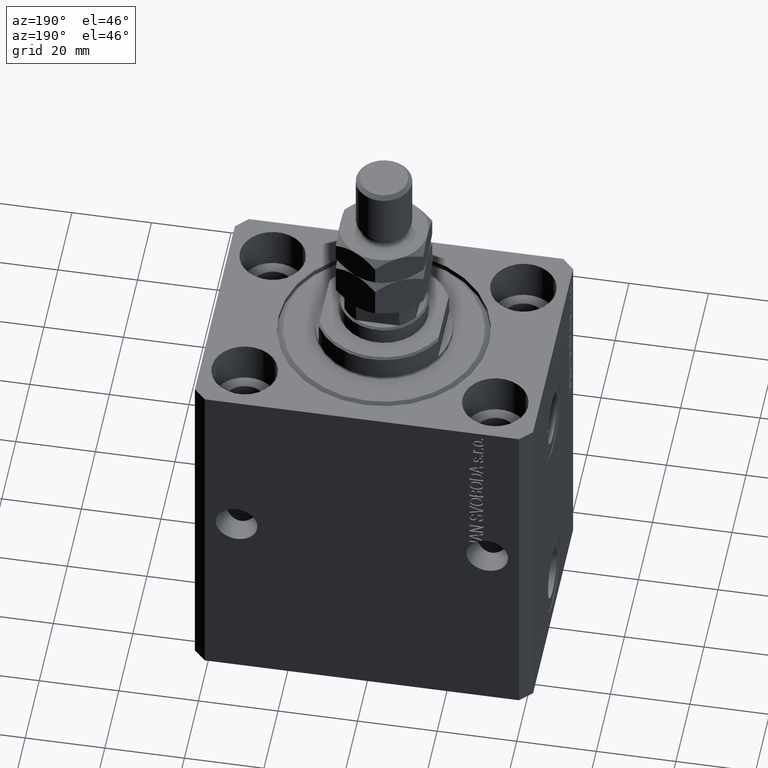
[diagram: clean part render]
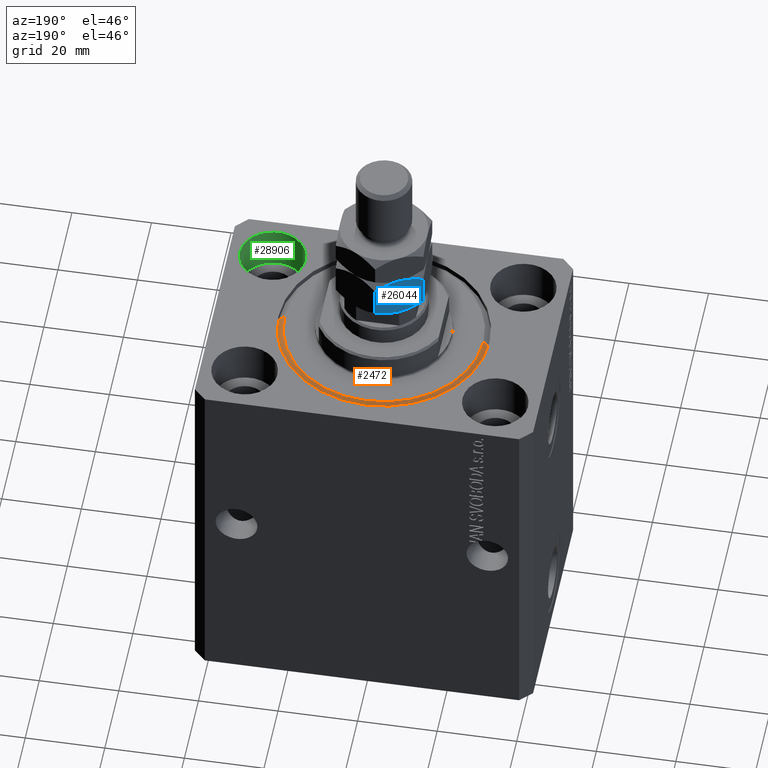
[diagram: same view with three faces highlighted in distinct colors, each labeled with its STEP entity id]
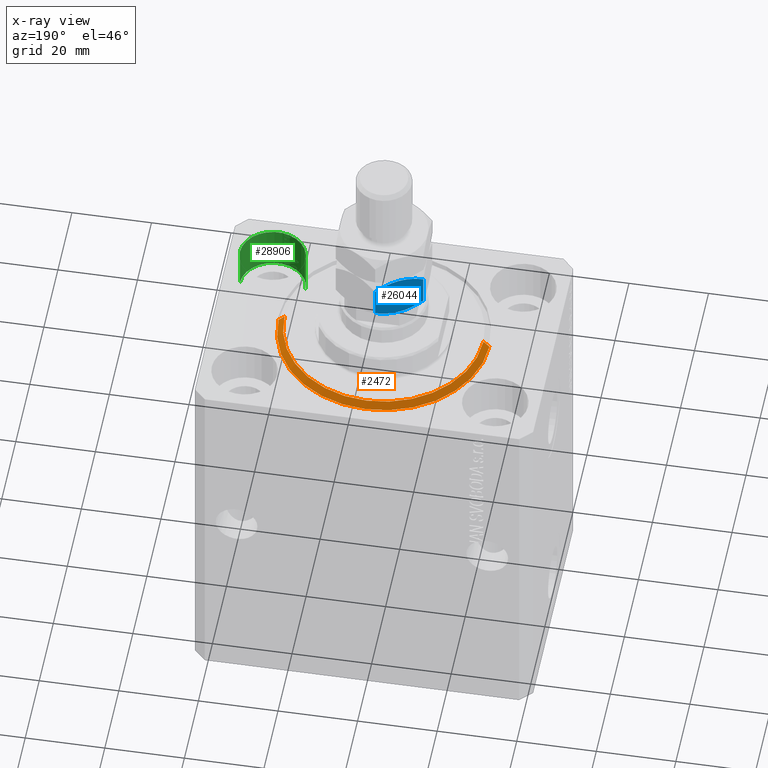
[diagram: x-ray of the same camera — body ghosted, the three highlighted faces saturated]
A machine part, auxiliary view with three faces highlighted in distinct colors.
The next image is the same camera in x-ray (body ghosted, the three faces saturated) — at least one of them is partly hidden behind the body in this view.
Their STEP definitions:

[orange] entity #2472 — the highlighted conical surface has half-angle 45 deg.
#309 = VECTOR ( 'NONE', #5773, 1000.000000000000000 ) ;
#1334 = CARTESIAN_POINT ( 'NONE',  ( -26.50000000000000355, 0.000000000000000000, 1.500000000000046407 ) ) ;
#2472 = ADVANCED_FACE ( 'NONE', ( #13276 ), #9640, .T. ) ;
#2900 = AXIS2_PLACEMENT_3D ( 'NONE', #9758, #6463, #7159 ) ;
#3395 = CARTESIAN_POINT ( 'NONE',  ( -26.50000000000000355, 3.245314017740486554E-15, 1.500000000000046407 ) ) ;
#3832 = ORIENTED_EDGE ( 'NONE', *, *, #26997, .F. ) ;
#4701 = EDGE_CURVE ( 'NONE', #36818, #40067, #7803, .T. ) ;
#5773 = DIRECTION ( 'NONE',  ( 0.7071067811865491270, 0.000000000000000000, 0.7071067811865459074 ) ) ;
#6463 = DIRECTION ( 'NONE',  ( -0.000000000000000000, -0.000000000000000000, 1.000000000000000000 ) ) ;
#7159 = DIRECTION ( 'NONE',  ( 1.000000000000000000, 0.000000000000000000, 0.000000000000000000 ) ) ;
#7619 = LINE ( 'NONE', #3395, #14797 ) ;
#7803 = CIRCLE ( 'NONE', #31150, 24.99999999999995026 ) ;
#9640 = CONICAL_SURFACE ( 'NONE', #2900, 26.50000000000000355, 0.7853981633974506105 ) ;
#9758 = CARTESIAN_POINT ( 'NONE',  ( 0.000000000000000000, 0.000000000000000000, 1.500000000000046407 ) ) ;
#10545 = ORIENTED_EDGE ( 'NONE', *, *, #16879, .T. ) ;
#11332 = DIRECTION ( 'NONE',  ( 1.000000000000000000, 0.000000000000000000, 0.000000000000000000 ) ) ;
#11647 = CARTESIAN_POINT ( 'NONE',  ( -24.99999999999995026, 3.153465507804431248E-15, 0.000000000000000000 ) ) ;
#13276 = FACE_OUTER_BOUND ( 'NONE', #25626, .T. ) ;
#14797 = VECTOR ( 'NONE', #32456, 1000.000000000000000 ) ;
#16879 = EDGE_CURVE ( 'NONE', #36818, #33180, #7619, .T. ) ;
#20016 = DIRECTION ( 'NONE',  ( -0.000000000000000000, -0.000000000000000000, 1.000000000000000000 ) ) ;
#22653 = CARTESIAN_POINT ( 'NONE',  ( 26.50000000000000355, 0.000000000000000000, 1.500000000000046407 ) ) ;
#25527 = ORIENTED_EDGE ( 'NONE', *, *, #4701, .F. ) ;
#25626 = EDGE_LOOP ( 'NONE', ( #25527, #10545, #37159, #3832 ) ) ;
#26997 = EDGE_CURVE ( 'NONE', #40067, #45445, #27097, .T. ) ;
#27097 = LINE ( 'NONE', #22653, #309 ) ;
#27249 = CIRCLE ( 'NONE', #45994, 26.50000000000000355 ) ;
#29155 = CARTESIAN_POINT ( 'NONE',  ( 0.000000000000000000, 0.000000000000000000, 0.000000000000000000 ) ) ;
#29545 = CARTESIAN_POINT ( 'NONE',  ( 26.50000000000000355, 3.245314017740485765E-15, 1.500000000000046407 ) ) ;
#30316 = DIRECTION ( 'NONE',  ( 1.000000000000000000, 0.000000000000000000, 0.000000000000000000 ) ) ;
#30487 = EDGE_CURVE ( 'NONE', #45445, #33180, #27249, .T. ) ;
#31150 = AXIS2_PLACEMENT_3D ( 'NONE', #29155, #43464, #11332 ) ;
#32396 = CARTESIAN_POINT ( 'NONE',  ( 24.99999999999995026, 0.000000000000000000, 0.000000000000000000 ) ) ;
#32456 = DIRECTION ( 'NONE',  ( -0.7071067811865491270, 8.659560562354952580E-17, 0.7071067811865459074 ) ) ;
#33180 = VERTEX_POINT ( 'NONE', #1334 ) ;
#36818 = VERTEX_POINT ( 'NONE', #11647 ) ;
#37159 = ORIENTED_EDGE ( 'NONE', *, *, #30487, .F. ) ;
#40067 = VERTEX_POINT ( 'NONE', #32396 ) ;
#43464 = DIRECTION ( 'NONE',  ( -0.000000000000000000, -0.000000000000000000, -1.000000000000000000 ) ) ;
#45097 = CARTESIAN_POINT ( 'NONE',  ( 0.000000000000000000, 0.000000000000000000, 1.500000000000046407 ) ) ;
#45445 = VERTEX_POINT ( 'NONE', #29545 ) ;
#45994 = AXIS2_PLACEMENT_3D ( 'NONE', #45097, #20016, #30316 ) ;

[blue] entity #26044 — the highlighted planar face has unit normal (0.5, -0.866, 0).
#6 = VERTEX_POINT ( 'NONE', #9974 ) ;
#1317 = DIRECTION ( 'NONE',  ( 0.8660254037844389297, 0.4999999999999992784, 0.000000000000000000 ) ) ;
#1457 = CARTESIAN_POINT ( 'NONE',  ( -11.00000000000000000, 6.350852961085890591, 11.00000000000000000 ) ) ;
#1541 = FACE_OUTER_BOUND ( 'NONE', #26202, .T. ) ;
#1971 = CARTESIAN_POINT ( 'NONE',  ( -3.602926119288147433, 10.62155555733042434, 0.1689086083647601266 ) ) ;
#2264 = CARTESIAN_POINT ( 'NONE',  ( -5.981709287746635795, 9.248164454677164414, 1.734723475976807094E-15 ) ) ;
#4919 = CARTESIAN_POINT ( 'NONE',  ( -3.115032419653383400, 10.90324111615047542, 10.67178078790959539 ) ) ;
#5536 = PLANE ( 'NONE',  #45997 ) ;
#6260 = CARTESIAN_POINT ( 'NONE',  ( -6.470625887979888802, 8.965888323921223702, 0.04365929743512723255 ) ) ;
#6498 = LINE ( 'NONE', #17301, #27490 ) ;
#6540 = CARTESIAN_POINT ( 'NONE',  ( -5.018290712253354435, 9.804394428580495813, 11.00000000000000178 ) ) ;
#6963 = DIRECTION ( 'NONE',  ( -0.000000000000000000, -0.000000000000000000, -1.000000000000000000 ) ) ;
#8125 = B_SPLINE_CURVE_WITH_KNOTS ( 'NONE', 3,
 ( #15635, #29917, #16789, #37874, #44924, #30608 ),
 .UNSPECIFIED., .F., .F.,
 ( 4, 2, 4 ),
 ( 0.006583488920348289086, 0.009852050593448704457, 0.01312061226654911983 ),
 .UNSPECIFIED. ) ;
#8432 = CARTESIAN_POINT ( 'NONE',  ( -0.8624791307172121613, 12.20375336388174681, 9.796246636118258522 ) ) ;
#8729 = LINE ( 'NONE', #1457, #14270 ) ;
#9486 = CARTESIAN_POINT ( 'NONE',  ( -1.748214531935804672, 11.69237379155741330, 0.7776848045220272621 ) ) ;
#9585 = CARTESIAN_POINT ( 'NONE',  ( -4.327962126576701651E-16, 12.70170592217176342, 9.298294077828241910 ) ) ;
#9725 = CARTESIAN_POINT ( 'NONE',  ( -5.499999999999992895, 9.526279441628830114, 0.000000000000000000 ) ) ;
#9974 = CARTESIAN_POINT ( 'NONE',  ( -5.499999999999992895, 9.526279441628830114, 0.000000000000000000 ) ) ;
#10068 = CARTESIAN_POINT ( 'NONE',  ( -4.529374112020101428, 10.08667055933643830, 10.95634070256487469 ) ) ;
#11073 = CARTESIAN_POINT ( 'NONE',  ( -11.00000000000000000, 6.350852961085892368, 1.701705922171765195 ) ) ;
#11111 = EDGE_CURVE ( 'NONE', #6, #42583, #28547, .T. ) ;
#11687 = B_SPLINE_CURVE_WITH_KNOTS ( 'NONE', 3,
 ( #40567, #8432, #37033, #4919, #33520, #10068, #6540, #41944 ),
 .UNSPECIFIED., .F., .F.,
 ( 4, 2, 2, 4 ),
 ( 2.544311317609508508E-07, 0.003291871675740026034, 0.004937680298044156910, 0.006583488920348289086 ),
 .UNSPECIFIED. ) ;
#13069 = CARTESIAN_POINT ( 'NONE',  ( -5.499999999999992895, 9.526279441628830114, 0.000000000000000000 ) ) ;
#13714 = CARTESIAN_POINT ( 'NONE',  ( 9.006588997586899406E-16, 12.70170592217176342, 1.701705922171758312 ) ) ;
#14270 = VECTOR ( 'NONE', #44157, 1000.000000000000000 ) ;
#15635 = CARTESIAN_POINT ( 'NONE',  ( -5.499999999999990230, 9.526279441628824785, 11.00000000000000000 ) ) ;
#15647 = ORIENTED_EDGE ( 'NONE', *, *, #21121, .F. ) ;
#16154 = ORIENTED_EDGE ( 'NONE', *, *, #38952, .F. ) ;
#16328 = DIRECTION ( 'NONE',  ( 0.4999999999999993339, -0.8660254037844390407, 0.000000000000000000 ) ) ;
#16586 = CARTESIAN_POINT ( 'NONE',  ( -10.13752086928278118, 6.848805519375908979, 1.203753363881748362 ) ) ;
#16789 = CARTESIAN_POINT ( 'NONE',  ( -7.397073880711845462, 8.431003325927239445, 10.83109139163524404 ) ) ;
#17295 = CARTESIAN_POINT ( 'NONE',  ( -7.884967580346608607, 8.149317767107183030, 0.3282192120904074417 ) ) ;
#17301 = CARTESIAN_POINT ( 'NONE',  ( 0.000000000000000000, 12.70170592217176342, 11.00000000000000000 ) ) ;
#21121 = EDGE_CURVE ( 'NONE', #37706, #24244, #8729, .T. ) ;
#23773 = CARTESIAN_POINT ( 'NONE',  ( -0.8614806024966418230, 12.20432986441868728, 1.204329864418604235 ) ) ;
#24008 = EDGE_CURVE ( 'NONE', #31266, #42583, #6498, .T. ) ;
#24244 = VERTEX_POINT ( 'NONE', #11073 ) ;
#24728 = CARTESIAN_POINT ( 'NONE',  ( -11.00000000000000000, 6.350852961085890591, 9.298294077828234805 ) ) ;
#26044 = ADVANCED_FACE ( 'NONE', ( #1541 ), #5536, .F. ) ;
#26202 = EDGE_LOOP ( 'NONE', ( #29988, #15647, #16154, #37903, #40453, #27808 ) ) ;
#27490 = VECTOR ( 'NONE', #6963, 1000.000000000000000 ) ;
#27527 = CARTESIAN_POINT ( 'NONE',  ( -4.543329525579419048, 10.07861339756131791, 1.768604793866978714E-15 ) ) ;
#27808 = ORIENTED_EDGE ( 'NONE', *, *, #11111, .F. ) ;
#28060 = CARTESIAN_POINT ( 'NONE',  ( -9.255521992360788985, 7.358027808391769398, 0.7806233875467772920 ) ) ;
#28547 = B_SPLINE_CURVE_WITH_KNOTS ( 'NONE', 3,
 ( #9725, #27527, #1971, #9486, #23773, #13714 ),
 .UNSPECIFIED., .F., .F.,
 ( 4, 2, 4 ),
 ( 0.006583488920348303831, 0.009852050593448711396, 0.01312061226654911809 ),
 .UNSPECIFIED. ) ;
#29917 = CARTESIAN_POINT ( 'NONE',  ( -6.456670474420569406, 8.973945485696344093, 11.00000000000000000 ) ) ;
#29988 = ORIENTED_EDGE ( 'NONE', *, *, #43965, .F. ) ;
#30140 = CARTESIAN_POINT ( 'NONE',  ( 0.000000000000000000, 12.70170592217176342, 11.00000000000000000 ) ) ;
#30608 = CARTESIAN_POINT ( 'NONE',  ( -11.00000000000000000, 6.350852961085890591, 9.298294077828234805 ) ) ;
#31266 = VERTEX_POINT ( 'NONE', #9585 ) ;
#33520 = CARTESIAN_POINT ( 'NONE',  ( -3.579894028994817123, 10.63485314086127786, 10.79187792513292798 ) ) ;
#35087 = B_SPLINE_CURVE_WITH_KNOTS ( 'NONE', 3,
 ( #46134, #16586, #28060, #17295, #38148, #6260, #2264, #13069 ),
 .UNSPECIFIED., .F., .F.,
 ( 4, 2, 2, 4 ),
 ( 2.544311317612473652E-07, 0.003291871675740032539, 0.004937680298044168185, 0.006583488920348303831 ),
 .UNSPECIFIED. ) ;
#35377 = VERTEX_POINT ( 'NONE', #35506 ) ;
#35506 = CARTESIAN_POINT ( 'NONE',  ( -5.499999999999990230, 9.526279441628824785, 11.00000000000000000 ) ) ;
#36351 = CARTESIAN_POINT ( 'NONE',  ( 9.006588997586899406E-16, 12.70170592217176342, 1.701705922171758312 ) ) ;
#37033 = CARTESIAN_POINT ( 'NONE',  ( -1.744478007639206130, 11.69453107486589083, 10.21937661245322637 ) ) ;
#37706 = VERTEX_POINT ( 'NONE', #24728 ) ;
#37874 = CARTESIAN_POINT ( 'NONE',  ( -9.251785468064188223, 7.360185091700242488, 10.22231519547797340 ) ) ;
#37903 = ORIENTED_EDGE ( 'NONE', *, *, #42790, .F. ) ;
#38148 = CARTESIAN_POINT ( 'NONE',  ( -7.420105971005176215, 8.417705742396382362, 0.2081220748670755127 ) ) ;
#38952 = EDGE_CURVE ( 'NONE', #35377, #37706, #8125, .T. ) ;
#40453 = ORIENTED_EDGE ( 'NONE', *, *, #24008, .T. ) ;
#40567 = CARTESIAN_POINT ( 'NONE',  ( -4.327962126576701651E-16, 12.70170592217176342, 9.298294077828241910 ) ) ;
#41944 = CARTESIAN_POINT ( 'NONE',  ( -5.499999999999990230, 9.526279441628824785, 11.00000000000000000 ) ) ;
#42583 = VERTEX_POINT ( 'NONE', #36351 ) ;
#42790 = EDGE_CURVE ( 'NONE', #31266, #35377, #11687, .T. ) ;
#43965 = EDGE_CURVE ( 'NONE', #24244, #6, #35087, .T. ) ;
#44157 = DIRECTION ( 'NONE',  ( -0.000000000000000000, -0.000000000000000000, -1.000000000000000000 ) ) ;
#44924 = CARTESIAN_POINT ( 'NONE',  ( -10.13851939750335696, 6.848229018838968507, 9.795670135581390880 ) ) ;
#45997 = AXIS2_PLACEMENT_3D ( 'NONE', #30140, #16328, #1317 ) ;
#46134 = CARTESIAN_POINT ( 'NONE',  ( -11.00000000000000000, 6.350852961085892368, 1.701705922171765195 ) ) ;

[green] entity #28906 — the highlighted cylindrical surface (edge-blend (fillet) strip) has radius 8.25 mm, axis along (0, 0, 1).
#950 = CARTESIAN_POINT ( 'NONE',  ( 31.50000000000000000, -20.00000000000000000, -11.00000000000000000 ) ) ;
#1206 = CARTESIAN_POINT ( 'NONE',  ( 31.50000000000000000, -20.00000000000000000, 0.000000000000000000 ) ) ;
#1975 = ORIENTED_EDGE ( 'NONE', *, *, #25900, .T. ) ;
#4029 = VERTEX_POINT ( 'NONE', #17854 ) ;
#5142 = CIRCLE ( 'NONE', #8790, 8.249999999999992895 ) ;
#7280 = LINE ( 'NONE', #11030, #39227 ) ;
#8016 = CYLINDRICAL_SURFACE ( 'NONE', #39172, 8.249999999999992895 ) ;
#8790 = AXIS2_PLACEMENT_3D ( 'NONE', #26554, #22578, #26330 ) ;
#9345 = LINE ( 'NONE', #29756, #30926 ) ;
#10036 = CARTESIAN_POINT ( 'NONE',  ( 39.74999999999999289, -20.00000000000000000, 0.000000000000000000 ) ) ;
#11030 = CARTESIAN_POINT ( 'NONE',  ( 39.74999999999999289, -20.00000000000000000, -11.00000000000000000 ) ) ;
#11788 = AXIS2_PLACEMENT_3D ( 'NONE', #1206, #29372, #25625 ) ;
#12022 = ORIENTED_EDGE ( 'NONE', *, *, #32894, .T. ) ;
#13711 = EDGE_LOOP ( 'NONE', ( #24128, #1975, #12022, #22236 ) ) ;
#15282 = DIRECTION ( 'NONE',  ( 1.000000000000000000, 0.000000000000000000, 0.000000000000000000 ) ) ;
#17854 = CARTESIAN_POINT ( 'NONE',  ( 23.25000000000000355, -20.00000000000000000, 0.000000000000000000 ) ) ;
#18251 = VERTEX_POINT ( 'NONE', #10036 ) ;
#19010 = FACE_OUTER_BOUND ( 'NONE', #13711, .T. ) ;
#19904 = EDGE_CURVE ( 'NONE', #45413, #18251, #7280, .T. ) ;
#22236 = ORIENTED_EDGE ( 'NONE', *, *, #19904, .F. ) ;
#22578 = DIRECTION ( 'NONE',  ( 0.000000000000000000, 0.000000000000000000, 1.000000000000000000 ) ) ;
#23171 = CARTESIAN_POINT ( 'NONE',  ( 23.25000000000000355, -20.00000000000000000, -11.00000000000000000 ) ) ;
#24128 = ORIENTED_EDGE ( 'NONE', *, *, #35519, .F. ) ;
#25625 = DIRECTION ( 'NONE',  ( 1.000000000000000000, 0.000000000000000000, 0.000000000000000000 ) ) ;
#25900 = EDGE_CURVE ( 'NONE', #26721, #4029, #9345, .T. ) ;
#26330 = DIRECTION ( 'NONE',  ( 1.000000000000000000, 0.000000000000000000, 0.000000000000000000 ) ) ;
#26554 = CARTESIAN_POINT ( 'NONE',  ( 31.50000000000000000, -20.00000000000000000, -11.00000000000000000 ) ) ;
#26721 = VERTEX_POINT ( 'NONE', #23171 ) ;
#28906 = ADVANCED_FACE ( 'NONE', ( #19010 ), #8016, .F. ) ;
#29372 = DIRECTION ( 'NONE',  ( 0.000000000000000000, 0.000000000000000000, 1.000000000000000000 ) ) ;
#29569 = DIRECTION ( 'NONE',  ( -0.000000000000000000, -0.000000000000000000, 1.000000000000000000 ) ) ;
#29756 = CARTESIAN_POINT ( 'NONE',  ( 23.25000000000000355, -20.00000000000000000, -11.00000000000000000 ) ) ;
#30926 = VECTOR ( 'NONE', #44073, 1000.000000000000000 ) ;
#32894 = EDGE_CURVE ( 'NONE', #4029, #18251, #35741, .T. ) ;
#33060 = CARTESIAN_POINT ( 'NONE',  ( 39.74999999999999289, -20.00000000000000000, -11.00000000000000000 ) ) ;
#35519 = EDGE_CURVE ( 'NONE', #26721, #45413, #5142, .T. ) ;
#35741 = CIRCLE ( 'NONE', #11788, 8.249999999999992895 ) ;
#39172 = AXIS2_PLACEMENT_3D ( 'NONE', #950, #29569, #15282 ) ;
#39227 = VECTOR ( 'NONE', #39869, 1000.000000000000000 ) ;
#39869 = DIRECTION ( 'NONE',  ( -0.000000000000000000, -0.000000000000000000, 1.000000000000000000 ) ) ;
#44073 = DIRECTION ( 'NONE',  ( -0.000000000000000000, -0.000000000000000000, 1.000000000000000000 ) ) ;
#45413 = VERTEX_POINT ( 'NONE', #33060 ) ;